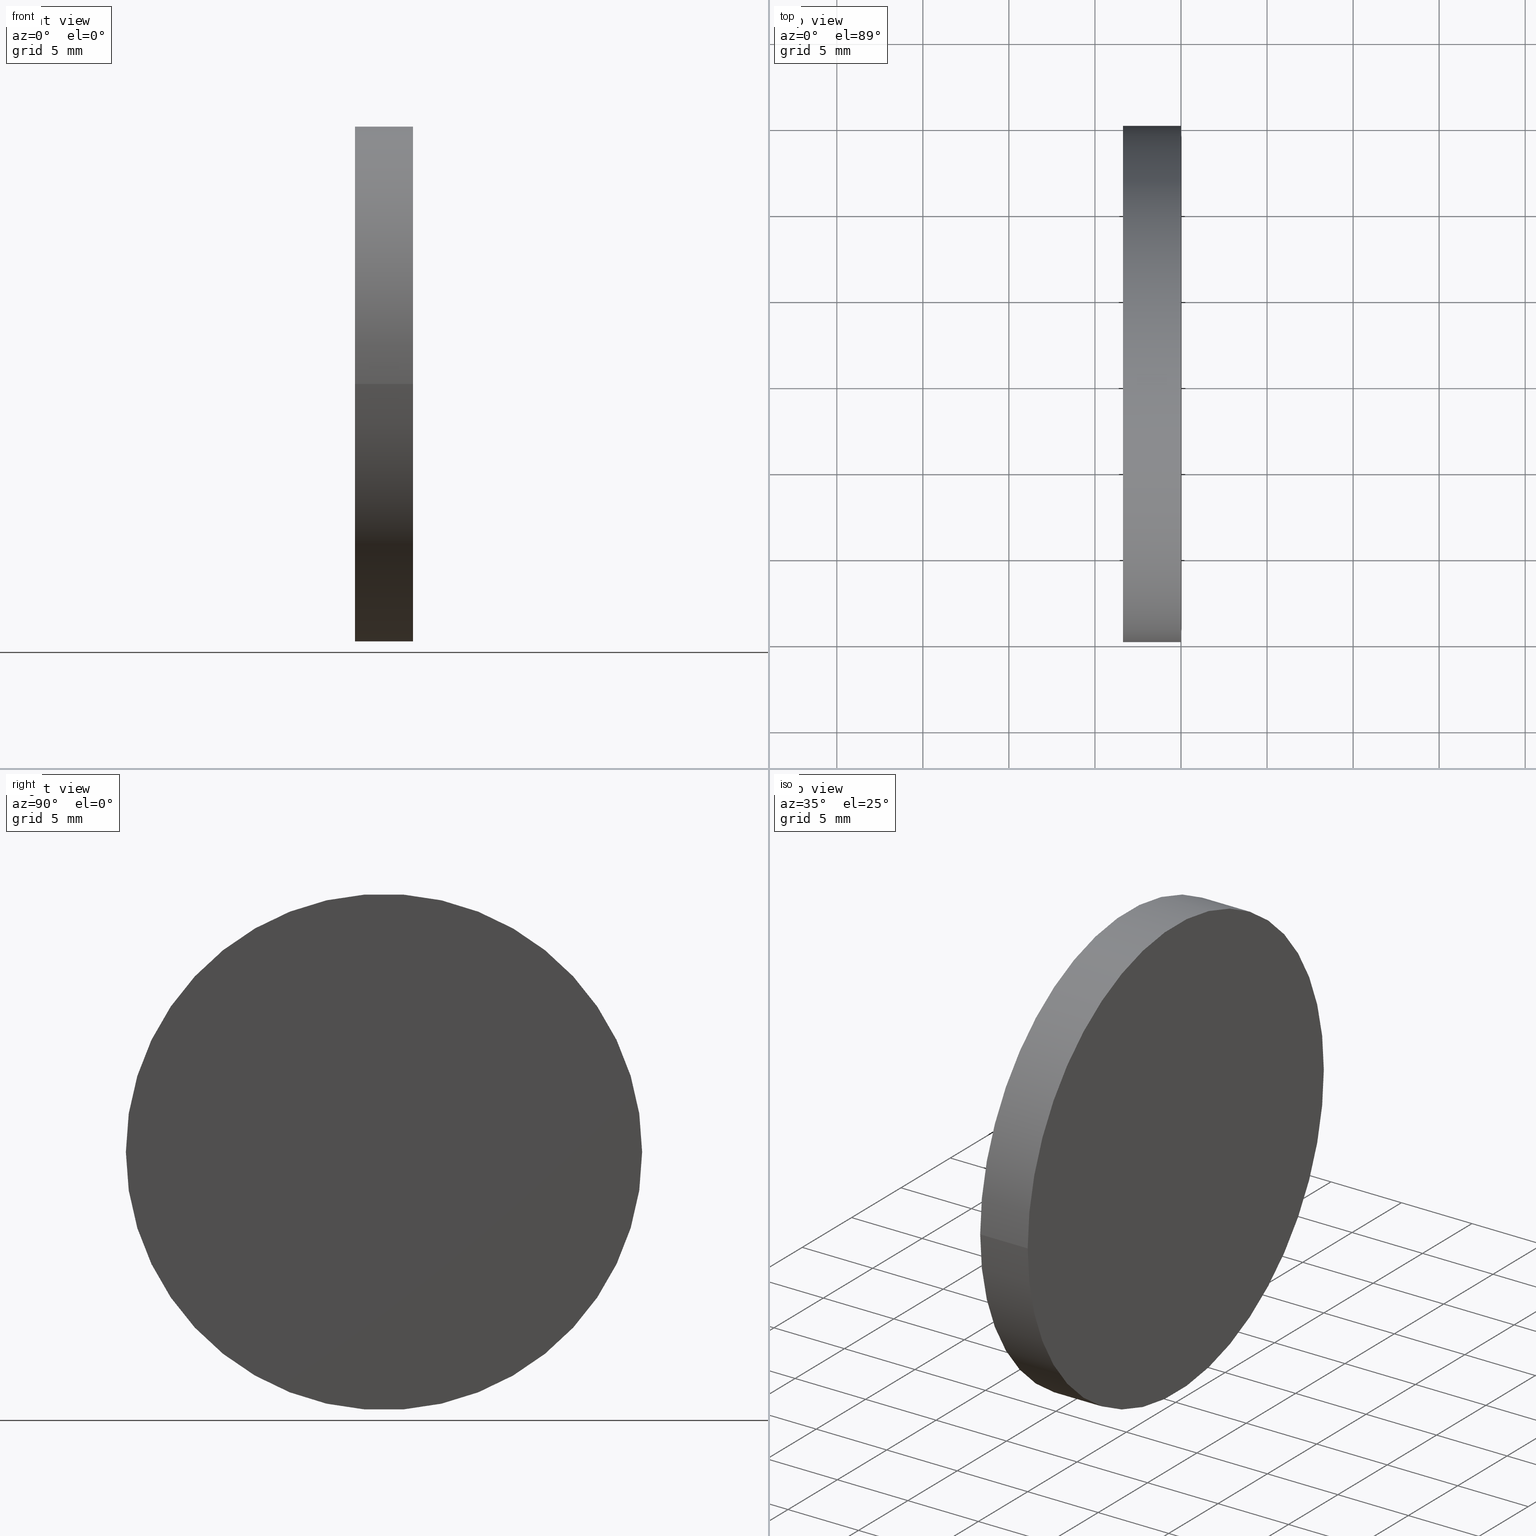
[diagram: canonical four-view strip — front | top / right | iso, engineering-drawing reading convention]
A machine part, canonical four-view strip (front | top / right | iso — engineering-drawing reading convention). The complete STEP part file that produces these views, byte-faithful:
ISO-10303-21;
HEADER;
FILE_DESCRIPTION (( 'STEP AP203' ),
    '1' );
FILE_NAME ('120360.STEP',
    '2024-05-10T07:03:00',
    ( '' ),
    ( '' ),
    'SwSTEP 2.0',
    'SolidWorks 2020',
    '' );
FILE_SCHEMA (( 'CONFIG_CONTROL_DESIGN' ));
ENDSEC;

DATA;
#1 = DIRECTION ( 'NONE',  ( 0.000000000000000000, -1.000000000000000000, 1.224646799147353454E-16 ) ) ;
#2 = DATE_TIME_ROLE ( 'creation_date' ) ;
#3 = ADVANCED_FACE ( 'NONE', ( #26 ), #175, .F. ) ;
#4 = AXIS2_PLACEMENT_3D ( 'NONE', #98, #117, #182 ) ;
#5 = CALENDAR_DATE ( 2024, 10, 5 ) ;
#6 = APPROVAL_STATUS ( 'not_yet_approved' ) ;
#7 = CC_DESIGN_PERSON_AND_ORGANIZATION_ASSIGNMENT ( #66, #145, ( #11 ) ) ;
#8 = CARTESIAN_POINT ( 'NONE',  ( -9.652616528953584771E-16, 15.00000000000000000, 0.000000000000000000 ) ) ;
#9 = ADVANCED_FACE ( 'NONE', ( #74 ), #160, .F. ) ;
#10 = DIRECTION ( 'NONE',  ( 1.000000000000000000, 1.224646799147353207E-16, -0.000000000000000000 ) ) ;
#11 = PRODUCT_DEFINITION_FORMATION_WITH_SPECIFIED_SOURCE ( '�κ�', '', #115, .NOT_KNOWN. ) ;
#12 = DIRECTION ( 'NONE',  ( 1.000000000000000000, 1.224646799147353207E-16, -0.000000000000000000 ) ) ;
#13 = MECHANICAL_CONTEXT ( 'NONE', #181, 'mechanical' ) ;
#14 = AXIS2_PLACEMENT_3D ( 'NONE', #51, #103, #1 ) ;
#15 = APPROVAL_ROLE ( '' ) ;
#16 = DIRECTION ( 'NONE',  ( 1.000000000000000000, 1.224646799147353207E-16, -0.000000000000000000 ) ) ;
#17 = CARTESIAN_POINT ( 'NONE',  ( -1.401115925808194033E-15, 15.00000000000000000, 0.000000000000000000 ) ) ;
#18 = AXIS2_PLACEMENT_3D ( 'NONE', #49, #170, #124 ) ;
#19 =( GEOMETRIC_REPRESENTATION_CONTEXT ( 3 ) GLOBAL_UNCERTAINTY_ASSIGNED_CONTEXT ( ( #108 ) ) GLOBAL_UNIT_ASSIGNED_CONTEXT ( ( #78, #33, #197 ) ) REPRESENTATION_CONTEXT ( 'NONE', 'WORKASPACE' ) );
#20 = CARTESIAN_POINT ( 'NONE',  ( -2.500000000000000000, -3.061616997868383141E-16, 0.000000000000000000 ) ) ;
#21 = DATE_TIME_ROLE ( 'classification_date' ) ;
#22 = PERSON_AND_ORGANIZATION_ROLE ( 'classification_officer' ) ;
#23 = COORDINATED_UNIVERSAL_TIME_OFFSET ( 8, 0, .AHEAD. ) ;
#24 = PRODUCT_DEFINITION ( 'δ֪', '', #11, #121 ) ;
#25 = AXIS2_PLACEMENT_3D ( 'NONE', #101, #58, #161 ) ;
#26 = FACE_OUTER_BOUND ( 'NONE', #151, .T. ) ;
#27 = PRODUCT_DEFINITION_SHAPE ( 'NONE', 'NONE',  #24 ) ;
#28 = ORIENTED_EDGE ( 'NONE', *, *, #180, .F. ) ;
#29 = EDGE_LOOP ( 'NONE', ( #60, #87, #28 ) ) ;
#30 = FACE_OUTER_BOUND ( 'NONE', #47, .T. ) ;
#31 = CC_DESIGN_DATE_AND_TIME_ASSIGNMENT ( #68, #21, ( #111 ) ) ;
#32 = VERTEX_POINT ( 'NONE', #131 ) ;
#33 =( NAMED_UNIT ( * ) PLANE_ANGLE_UNIT ( ) SI_UNIT ( $, .RADIAN. ) );
#34 = DATE_AND_TIME ( #105, #95 ) ;
#35 = CC_DESIGN_SECURITY_CLASSIFICATION ( #111, ( #11 ) ) ;
#36 = PLANE ( 'NONE',  #82 ) ;
#37 = PERSON_AND_ORGANIZATION ( #59, #183 ) ;
#38 = APPROVAL_ROLE ( '' ) ;
#39 = APPROVAL_DATE_TIME ( #189, #179 ) ;
#40 = APPLICATION_CONTEXT ( 'configuration controlled 3d designs of mechanical parts and assemblies' ) ;
#41 = EDGE_CURVE ( 'NONE', #32, #113, #150, .T. ) ;
#42 = ORIENTED_EDGE ( 'NONE', *, *, #157, .T. ) ;
#43 = ORIENTED_EDGE ( 'NONE', *, *, #168, .T. ) ;
#44 = LINE ( 'NONE', #99, #156 ) ;
#45 = AXIS2_PLACEMENT_3D ( 'NONE', #106, #184, #122 ) ;
#46 = ORIENTED_EDGE ( 'NONE', *, *, #180, .T. ) ;
#47 = EDGE_LOOP ( 'NONE', ( #102, #43, #149, #177 ) ) ;
#48 = APPLICATION_PROTOCOL_DEFINITION ( 'international standard', 'config_control_design', 1994, #40 ) ;
#49 = CARTESIAN_POINT ( 'NONE',  ( -3.369999999999999218, -4.127059713126579305E-16, 0.000000000000000000 ) ) ;
#50 = PERSON_AND_ORGANIZATION ( #59, #183 ) ;
#51 = CARTESIAN_POINT ( 'NONE',  ( -131.7399966763873351, -0.02931019276956551775, 3.589463375762054284E-18 ) ) ;
#52 = PERSON_AND_ORGANIZATION_ROLE ( 'creator' ) ;
#53 = LOCAL_TIME ( 15, 3, 0.000000000000000000, #71 ) ;
#54 = CALENDAR_DATE ( 2024, 10, 5 ) ;
#55 = EDGE_LOOP ( 'NONE', ( #42, #116 ) ) ;
#56 = AXIS2_PLACEMENT_3D ( 'NONE', #91, #186, #81 ) ;
#57 = DIRECTION ( 'NONE',  ( 1.000000000000000000, 1.224646799147353207E-16, -0.000000000000000000 ) ) ;
#58 = DIRECTION ( 'NONE',  ( 1.000000000000000000, 1.224646799147353207E-16, -0.000000000000000000 ) ) ;
#59 = PERSON ( 'δָ��', 'δָ��', 'δָ��', ('δָ��'), ('δָ��'), ('δָ��') ) ;
#60 = ORIENTED_EDGE ( 'NONE', *, *, #168, .F. ) ;
#61 = CLOSED_SHELL ( 'NONE', ( #130, #9, #3, #178, #118 ) ) ;
#62 = ORIENTED_EDGE ( 'NONE', *, *, #80, .T. ) ;
#63 = COORDINATED_UNIVERSAL_TIME_OFFSET ( 8, 0, .AHEAD. ) ;
#64 = CYLINDRICAL_SURFACE ( 'NONE', #96, 15.00000000000000000 ) ;
#65 = CARTESIAN_POINT ( 'NONE',  ( 0.000000000000000000, 0.000000000000000000, 0.000000000000000000 ) ) ;
#66 = PERSON_AND_ORGANIZATION ( #59, #183 ) ;
#67 = CIRCLE ( 'NONE', #45, 129.2400000000000375 ) ;
#68 = DATE_AND_TIME ( #5, #53 ) ;
#69 = COORDINATED_UNIVERSAL_TIME_OFFSET ( 8, 0, .AHEAD. ) ;
#70 = EDGE_CURVE ( 'NONE', #72, #32, #75, .T. ) ;
#71 = COORDINATED_UNIVERSAL_TIME_OFFSET ( 8, 0, .AHEAD. ) ;
#72 = VERTEX_POINT ( 'NONE', #84 ) ;
#73 = LOCAL_TIME ( 15, 3, 0.000000000000000000, #172 ) ;
#74 = FACE_OUTER_BOUND ( 'NONE', #29, .T. ) ;
#75 = LINE ( 'NONE', #134, #188 ) ;
#76 = ORIENTED_EDGE ( 'NONE', *, *, #80, .F. ) ;
#77 = DIRECTION ( 'NONE',  ( -1.224646799147352961E-16, 1.000000000000000000, 0.000000000000000000 ) ) ;
#78 =( LENGTH_UNIT ( ) NAMED_UNIT ( * ) SI_UNIT ( .MILLI., .METRE. ) );
#79 = CARTESIAN_POINT ( 'NONE',  ( -3.370000000000006768, 14.99999999999998579, 0.000000000000000000 ) ) ;
#80 = EDGE_CURVE ( 'NONE', #148, #72, #138, .T. ) ;
#81 = DIRECTION ( 'NONE',  ( -1.224646799147352961E-16, 1.000000000000000000, 0.000000000000000000 ) ) ;
#82 = AXIS2_PLACEMENT_3D ( 'NONE', #17, #16, #167 ) ;
#83 = CALENDAR_DATE ( 2024, 10, 5 ) ;
#84 = CARTESIAN_POINT ( 'NONE',  ( -3.370000000000004992, -14.99999999999998579, 1.836970198721028011E-15 ) ) ;
#85 = ADVANCED_BREP_SHAPE_REPRESENTATION ( '120360', ( #133, #199 ), #19 ) ;
#86 = PRODUCT_RELATED_PRODUCT_CATEGORY ( 'detail', '', ( #115 ) ) ;
#87 = ORIENTED_EDGE ( 'NONE', *, *, #140, .T. ) ;
#88 = CARTESIAN_POINT ( 'NONE',  ( -131.7399966763873351, -1.613428357929991286E-14, 0.000000000000000000 ) ) ;
#89 = DIRECTION ( 'NONE',  ( 1.000000000000000000, 0.000000000000000000, 0.000000000000000000 ) ) ;
#90 = APPLICATION_PROTOCOL_DEFINITION ( 'international standard', 'config_control_design', 1994, #181 ) ;
#91 = CARTESIAN_POINT ( 'NONE',  ( 0.000000000000000000, 0.000000000000000000, 0.000000000000000000 ) ) ;
#92 = DIRECTION ( 'NONE',  ( 1.000000000000000000, 1.224646799147353207E-16, -0.000000000000000000 ) ) ;
#93 = APPROVAL_PERSON_ORGANIZATION ( #50, #201, #15 ) ;
#94 = APPROVAL_STATUS ( 'not_yet_approved' ) ;
#95 = LOCAL_TIME ( 15, 3, 0.000000000000000000, #63 ) ;
#96 = AXIS2_PLACEMENT_3D ( 'NONE', #152, #92, #77 ) ;
#97 = EDGE_LOOP ( 'NONE', ( #62, #194, #143, #193 ) ) ;
#98 = CARTESIAN_POINT ( 'NONE',  ( -3.369999999999999218, -4.127059713126579305E-16, 0.000000000000000000 ) ) ;
#99 = CARTESIAN_POINT ( 'NONE',  ( -1.836970198721029589E-15, 15.00000000000000000, 0.000000000000000000 ) ) ;
#100 = EDGE_CURVE ( 'NONE', #148, #113, #44, .T. ) ;
#101 = CARTESIAN_POINT ( 'NONE',  ( -131.7399966763873351, -1.613428357929991286E-14, 0.000000000000000000 ) ) ;
#102 = ORIENTED_EDGE ( 'NONE', *, *, #70, .F. ) ;
#103 = DIRECTION ( 'NONE',  ( -1.499759782661857608E-32, 1.224646799147353207E-16, 1.000000000000000000 ) ) ;
#104 = CC_DESIGN_PERSON_AND_ORGANIZATION_ASSIGNMENT ( #200, #137, ( #115 ) ) ;
#105 = CALENDAR_DATE ( 2024, 10, 5 ) ;
#106 = CARTESIAN_POINT ( 'NONE',  ( -131.7399966763873351, 0.02931019276953324842, 0.000000000000000000 ) ) ;
#107 = DIRECTION ( 'NONE',  ( 1.000000000000000000, 1.224646799147353207E-16, -0.000000000000000000 ) ) ;
#108 = UNCERTAINTY_MEASURE_WITH_UNIT (LENGTH_MEASURE( 1.000000000000000082E-05 ), #78, 'distance_accuracy_value', 'NONE');
#109 = PERSON_AND_ORGANIZATION ( #59, #183 ) ;
#110 = DATE_AND_TIME ( #83, #173 ) ;
#111 = SECURITY_CLASSIFICATION ( '', '', #144 ) ;
#112 = CC_DESIGN_DATE_AND_TIME_ASSIGNMENT ( #110, #2, ( #24 ) ) ;
#113 = VERTEX_POINT ( 'NONE', #8 ) ;
#114 = CIRCLE ( 'NONE', #14, 129.2400000000000091 ) ;
#115 = PRODUCT ( '120360', '120360', '', ( #13 ) ) ;
#116 = ORIENTED_EDGE ( 'NONE', *, *, #41, .T. ) ;
#117 = DIRECTION ( 'NONE',  ( 1.000000000000000000, 1.224646799147353207E-16, -0.000000000000000000 ) ) ;
#118 = ADVANCED_FACE ( 'NONE', ( #135 ), #36, .T. ) ;
#119 = APPROVAL_PERSON_ORGANIZATION ( #174, #179, #159 ) ;
#120 = DIRECTION ( 'NONE',  ( -1.224646799147353207E-16, 1.000000000000000000, 0.000000000000000000 ) ) ;
#121 = DESIGN_CONTEXT ( 'detailed design', #40, 'design' ) ;
#122 = DIRECTION ( 'NONE',  ( -1.000000000000000000, 0.000000000000000000, 0.000000000000000000 ) ) ;
#123 = LOCAL_TIME ( 15, 3, 0.000000000000000000, #69 ) ;
#124 = DIRECTION ( 'NONE',  ( -1.156482317317871478E-16, 1.000000000000000000, 0.000000000000000000 ) ) ;
#125 = PERSON_AND_ORGANIZATION_ROLE ( 'design_supplier' ) ;
#126 = CC_DESIGN_PERSON_AND_ORGANIZATION_ASSIGNMENT ( #37, #125, ( #11 ) ) ;
#127 = DATE_AND_TIME ( #129, #123 ) ;
#128 = CIRCLE ( 'NONE', #163, 15.00000000000000000 ) ;
#129 = CALENDAR_DATE ( 2024, 10, 5 ) ;
#130 = ADVANCED_FACE ( 'NONE', ( #136 ), #64, .T. ) ;
#131 = CARTESIAN_POINT ( 'NONE',  ( 2.708678744546701095E-15, -15.00000000000000000, 1.836970198721029589E-15 ) ) ;
#132 = CIRCLE ( 'NONE', #18, 15.00000000000000000 ) ;
#133 = MANIFOLD_SOLID_BREP ( '��ת1', #61 ) ;
#134 = CARTESIAN_POINT ( 'NONE',  ( 1.836970198721029589E-15, -15.00000000000000000, 1.836970198721029589E-15 ) ) ;
#135 = FACE_OUTER_BOUND ( 'NONE', #55, .T. ) ;
#136 = FACE_OUTER_BOUND ( 'NONE', #97, .T. ) ;
#137 = PERSON_AND_ORGANIZATION_ROLE ( 'design_owner' ) ;
#138 = CIRCLE ( 'NONE', #4, 15.00000000000000000 ) ;
#139 = DIRECTION ( 'NONE',  ( 0.000000000000000000, 0.000000000000000000, 1.000000000000000000 ) ) ;
#140 = EDGE_CURVE ( 'NONE', #72, #165, #114, .T. ) ;
#141 = APPROVAL ( #6, 'δָ��' ) ;
#142 = AXIS2_PLACEMENT_3D ( 'NONE', #88, #10, #120 ) ;
#143 = ORIENTED_EDGE ( 'NONE', *, *, #157, .F. ) ;
#144 = SECURITY_CLASSIFICATION_LEVEL ( 'unclassified' ) ;
#145 = PERSON_AND_ORGANIZATION_ROLE ( 'creator' ) ;
#146 = CC_DESIGN_APPROVAL ( #179, ( #11 ) ) ;
#147 = ORIENTED_EDGE ( 'NONE', *, *, #140, .F. ) ;
#148 = VERTEX_POINT ( 'NONE', #79 ) ;
#149 = ORIENTED_EDGE ( 'NONE', *, *, #100, .T. ) ;
#150 = CIRCLE ( 'NONE', #171, 15.00000000000000000 ) ;
#151 = EDGE_LOOP ( 'NONE', ( #147, #76, #46 ) ) ;
#152 = CARTESIAN_POINT ( 'NONE',  ( 0.000000000000000000, 0.000000000000000000, 0.000000000000000000 ) ) ;
#153 = APPROVAL_STATUS ( 'not_yet_approved' ) ;
#154 = APPROVAL_DATE_TIME ( #34, #201 ) ;
#155 = SHAPE_DEFINITION_REPRESENTATION ( #27, #85 ) ;
#156 = VECTOR ( 'NONE', #12, 1000.000000000000000 ) ;
#157 = EDGE_CURVE ( 'NONE', #113, #32, #128, .T. ) ;
#158 = PERSON_AND_ORGANIZATION ( #59, #183 ) ;
#159 = APPROVAL_ROLE ( '' ) ;
#160 = TOROIDAL_SURFACE ( 'NONE', #25, 0.02931019276954938135, 129.2400000000000091 ) ;
#161 = DIRECTION ( 'NONE',  ( -1.224646799147353207E-16, 1.000000000000000000, 0.000000000000000000 ) ) ;
#162 = CC_DESIGN_PERSON_AND_ORGANIZATION_ASSIGNMENT ( #109, #22, ( #111 ) ) ;
#163 = AXIS2_PLACEMENT_3D ( 'NONE', #195, #107, #187 ) ;
#164 = CC_DESIGN_APPROVAL ( #141, ( #111 ) ) ;
#165 = VERTEX_POINT ( 'NONE', #20 ) ;
#166 = DIRECTION ( 'NONE',  ( -1.224646799147352961E-16, 1.000000000000000000, 0.000000000000000000 ) ) ;
#167 = DIRECTION ( 'NONE',  ( -1.224646799147353207E-16, 1.000000000000000000, 0.000000000000000000 ) ) ;
#168 = EDGE_CURVE ( 'NONE', #72, #148, #132, .T. ) ;
#169 = CYLINDRICAL_SURFACE ( 'NONE', #56, 15.00000000000000000 ) ;
#170 = DIRECTION ( 'NONE',  ( 1.000000000000000000, 1.224646799147353207E-16, -0.000000000000000000 ) ) ;
#171 = AXIS2_PLACEMENT_3D ( 'NONE', #191, #57, #166 ) ;
#172 = COORDINATED_UNIVERSAL_TIME_OFFSET ( 8, 0, .AHEAD. ) ;
#173 = LOCAL_TIME ( 15, 3, 0.000000000000000000, #23 ) ;
#174 = PERSON_AND_ORGANIZATION ( #59, #183 ) ;
#175 = TOROIDAL_SURFACE ( 'NONE', #142, 0.02931019276954938135, 129.2400000000000091 ) ;
#176 = CC_DESIGN_APPROVAL ( #201, ( #24 ) ) ;
#177 = ORIENTED_EDGE ( 'NONE', *, *, #41, .F. ) ;
#178 = ADVANCED_FACE ( 'NONE', ( #30 ), #169, .T. ) ;
#179 = APPROVAL ( #94, 'δָ��' ) ;
#180 = EDGE_CURVE ( 'NONE', #148, #165, #67, .T. ) ;
#181 = APPLICATION_CONTEXT ( 'configuration controlled 3d designs of mechanical parts and assemblies' ) ;
#182 = DIRECTION ( 'NONE',  ( -1.156482317317871478E-16, 1.000000000000000000, 0.000000000000000000 ) ) ;
#183 = ORGANIZATION ( 'δָ��', 'δָ��', '' ) ;
#184 = DIRECTION ( 'NONE',  ( -0.000000000000000000, 0.000000000000000000, -1.000000000000000000 ) ) ;
#185 = APPROVAL_PERSON_ORGANIZATION ( #158, #141, #38 ) ;
#186 = DIRECTION ( 'NONE',  ( 1.000000000000000000, 1.224646799147353207E-16, -0.000000000000000000 ) ) ;
#187 = DIRECTION ( 'NONE',  ( -1.224646799147352961E-16, 1.000000000000000000, 0.000000000000000000 ) ) ;
#188 = VECTOR ( 'NONE', #192, 1000.000000000000000 ) ;
#189 = DATE_AND_TIME ( #54, #73 ) ;
#190 = APPROVAL_DATE_TIME ( #127, #141 ) ;
#191 = CARTESIAN_POINT ( 'NONE',  ( 8.717085458256711118E-16, 1.067535080434802035E-31, 0.000000000000000000 ) ) ;
#192 = DIRECTION ( 'NONE',  ( 1.000000000000000000, 1.224646799147353207E-16, -0.000000000000000000 ) ) ;
#193 = ORIENTED_EDGE ( 'NONE', *, *, #100, .F. ) ;
#194 = ORIENTED_EDGE ( 'NONE', *, *, #70, .T. ) ;
#195 = CARTESIAN_POINT ( 'NONE',  ( 8.717085458256711118E-16, 1.067535080434802035E-31, 0.000000000000000000 ) ) ;
#196 = CC_DESIGN_PERSON_AND_ORGANIZATION_ASSIGNMENT ( #198, #52, ( #24 ) ) ;
#197 =( NAMED_UNIT ( * ) SI_UNIT ( $, .STERADIAN. ) SOLID_ANGLE_UNIT ( ) );
#198 = PERSON_AND_ORGANIZATION ( #59, #183 ) ;
#199 = AXIS2_PLACEMENT_3D ( 'NONE', #65, #139, #89 ) ;
#200 = PERSON_AND_ORGANIZATION ( #59, #183 ) ;
#201 = APPROVAL ( #153, 'δָ��' ) ;
ENDSEC;
END-ISO-10303-21;
